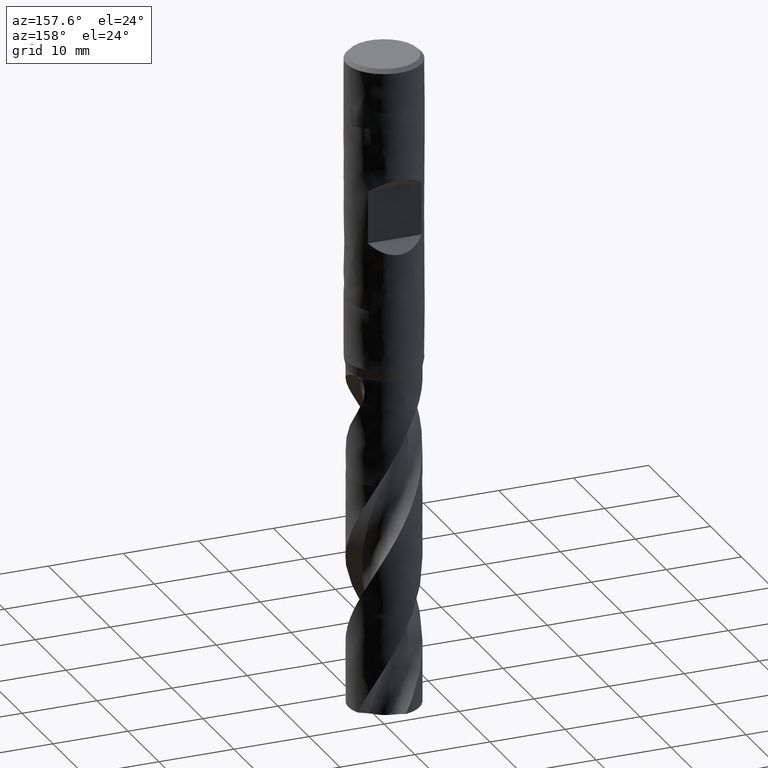
[diagram: clean part render]
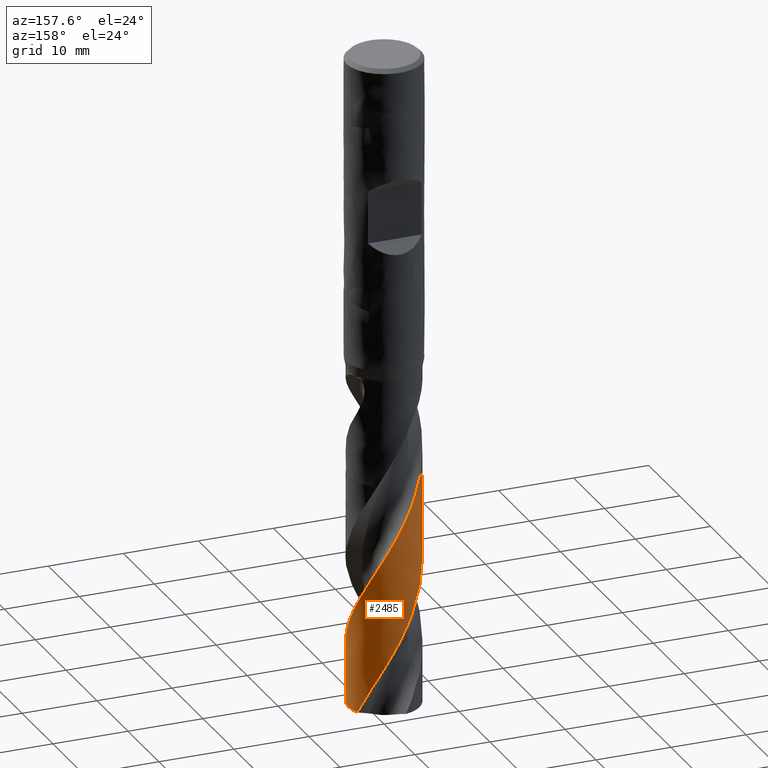
[diagram: same view with one face highlighted and labeled with its STEP entity id]
A machine part, auxiliary view. The second image highlights one B-rep face of the part: STEP entity #2485.
In plain terms, the highlighted face is a freeform B-spline surface patch.
Its self-contained STEP definition (entity closure, byte-faithful):
#1980 = VERTEX_POINT('', #1981);
#1981 = CARTESIAN_POINT('', (-4.75, 3.73517273739943E-15, -56.25));
#2083 = VERTEX_POINT('', #2084);
#2084 = CARTESIAN_POINT('', (-3.42835843437205, 3.28768283833311, -56.25));
#2151 = EDGE_CURVE('', #1980, #2083, #2152, .T.);
#2152 = CIRCLE('', #2153, 4.75);
#2153 = AXIS2_PLACEMENT_3D('', #2154, #2155, #2156);
#2154 = CARTESIAN_POINT('', (2.10903719436824E-31, 3.44431912260193E-15, -56.25));
#2155 = DIRECTION('', (3.74939945665464E-33, 6.12323399573677E-17, -1.));
#2156 = DIRECTION('', (-1., 6.12323399573677E-17, 0.));
#2168 = VERTEX_POINT('', #2169);
#2169 = CARTESIAN_POINT('', (-4.75, 4.24570542958693E-15, -64.5876315937453));
#2221 = EDGE_CURVE('', #2222, #2168, #2224, .T.);
#2222 = VERTEX_POINT('', #2223);
#2223 = CARTESIAN_POINT('', (4.34434243496843, 1.92072611471094, -87.2711413872355));
#2224 = B_SPLINE_CURVE_WITH_KNOTS('', 3, (#2225, #2226, #2227, #2228, #2229, #2230, #2231, #2232, #2233, #2234, #2235, #2236, #2237, #2238, #2239, #2240, #2241, #2242, #2243, #2244, #2245, #2246, #2247, #2248, #2249, #2250, #2251, #2252, #2253, #2254, #2255, #2256, #2257, #2258, #2259, #2260, #2261, #2262, #2263, #2264, #2265, #2266, #2267, #2268, #2269, #2270, #2271, #2272, #2273, #2274, #2275, #2276, #2277, #2278, #2279, #2280, #2281, #2282, #2283, #2284, #2285, #2286, #2287, #2288, #2289, #2290, #2291, #2292, #2293, #2294, #2295, #2296, #2297, #2298, #2299, #2300, #2301, #2302, #2303, #2304, #2305, #2306, #2307, #2308, #2309), .UNSPECIFIED., .F., .U., (4, 3, 3, 3, 3, 3, 3, 3, 3, 3, 3, 3, 3, 3, 3, 3, 3, 3, 3, 3, 3, 3, 3, 3, 3, 3, 3, 3, 4), (0., 0.998552159831574, 1.9967643399105, 2.9946425606502, 3.9921909999045, 4.98941205796551, 5.98630631202533, 6.98287259292542, 7.97910794089269, 8.97500755513941, 9.97056469055358, 10.9657705104362, 11.053329191126, 11.1117112191204, 12.1117415758042, 13.1113795363943, 14.1106412549104, 15.1095399413143, 16.1080862127289, 17.1062883632414, 18.1041525673784, 19.1016830280559, 20.0988820765574, 21.0957502295004, 22.0922862056059, 23.0884869031589, 24.0843473372233, 25.0798605337311, 26.1145709174074), .UNSPECIFIED.);
#2225 = CARTESIAN_POINT('', (4.34434243496843, 1.92072611471094, -87.2711413872355));
#2226 = CARTESIAN_POINT('', (4.27781410529156, 2.07120141857086, -86.9817959776542));
#2227 = CARTESIAN_POINT('', (4.20342842456414, 2.21828078697026, -86.6923649763104));
#2228 = CARTESIAN_POINT('', (4.12163068597098, 2.36107189396309, -86.4030391539372));
#2229 = CARTESIAN_POINT('', (4.03986079727494, 2.5038143844818, -86.1138118391086));
#2230 = CARTESIAN_POINT('', (3.95062988557853, 2.64236573586347, -85.8244993131762));
#2231 = CARTESIAN_POINT('', (3.85447368000594, 2.7758841204455, -85.5352917786127));
#2232 = CARTESIAN_POINT('', (3.75834964421, 2.90935783545488, -85.2461810005897));
#2233 = CARTESIAN_POINT('', (3.65524139865391, 3.03789018835303, -84.9569849532959));
#2234 = CARTESIAN_POINT('', (3.54576877339706, 3.16069989173321, -84.6678939193633));
#2235 = CARTESIAN_POINT('', (3.43633232694863, 3.28346900863143, -84.3788984250152));
#2236 = CARTESIAN_POINT('', (3.3204634352715, 3.400600324194, -84.0898176448567));
#2237 = CARTESIAN_POINT('', (3.19885933959265, 3.51138134150948, -83.8008418712261));
#2238 = CARTESIAN_POINT('', (3.07729515264644, 3.62212600207252, -83.5119609353295));
#2239 = CARTESIAN_POINT('', (2.94991928861926, 3.72659761825016, -83.2229947030538));
#2240 = CARTESIAN_POINT('', (2.81749881712219, 3.82416009281975, -82.9341334754723));
#2241 = CARTESIAN_POINT('', (2.68512174176038, 3.92169059473212, -82.6453669119616));
#2242 = CARTESIAN_POINT('', (2.54761605803888, 4.01238079957376, -82.3565150322913));
#2243 = CARTESIAN_POINT('', (2.40581031719949, 4.09567780930783, -82.067768158506));
#2244 = CARTESIAN_POINT('', (2.2640512297305, 4.17894741474764, -81.7791162809796));
#2245 = CARTESIAN_POINT('', (2.11790149269298, 4.25488355786413, -81.4903790696891));
#2246 = CARTESIAN_POINT('', (1.96824214883324, 4.32302241996921, -81.2017468664682));
#2247 = CARTESIAN_POINT('', (1.81863250282756, 4.39113865498575, -80.9132105102605));
#2248 = CARTESIAN_POINT('', (1.66541707039831, 4.45150763146678, -80.624588800556));
#2249 = CARTESIAN_POINT('', (1.5095198266473, 4.50375952876696, -80.3360721023846));
#2250 = CARTESIAN_POINT('', (1.35367512064429, 4.55599381705143, -80.0476526350379));
#2251 = CARTESIAN_POINT('', (1.19504788867904, 4.60015085259975, -79.7591477954206));
#2252 = CARTESIAN_POINT('', (1.0345950279684, 4.63595870647102, -79.4707479696627));
#2253 = CARTESIAN_POINT('', (0.874197345217096, 4.67175424641846, -79.1824473214064));
#2254 = CARTESIAN_POINT('', (0.711869869519744, 4.6992298668565, -78.8940612846018));
#2255 = CARTESIAN_POINT('', (0.548592064224543, 4.71821436001731, -78.6057802612678));
#2256 = CARTESIAN_POINT('', (0.385371876947343, 4.73719215386668, -78.3176009675054));
#2257 = CARTESIAN_POINT('', (0.221094853860025, 4.74769726844375, -78.0293362726109));
#2258 = CARTESIAN_POINT('', (0.0567524334764137, 4.74966095224644, -77.7411765870961));
#2259 = CARTESIAN_POINT('', (0.0422935092793621, 4.74983371808002, -77.7158241611079));
#2260 = CARTESIAN_POINT('', (0.0278336366858692, 4.74994046133322, -77.6904717401027));
#2261 = CARTESIAN_POINT('', (0.0133734885529995, 4.74998117362627, -77.6651194562028));
#2262 = CARTESIAN_POINT('', (0.00373180863677798, 4.7500083196067, -77.6482151614292));
#2263 = CARTESIAN_POINT('', (-0.00591002146786993, 4.75000610911033, -77.6313108796837));
#2264 = CARTESIAN_POINT('', (-0.0155518025620673, 4.74997454113568, -77.6144066502987));
#2265 = CARTESIAN_POINT('', (-0.18070663047611, 4.74943381081099, -77.3248527734975));
#2266 = CARTESIAN_POINT('', (-0.345906174537543, 4.7402675861475, -77.0352125227759));
#2267 = CARTESIAN_POINT('', (-0.510141133585553, 4.72252644501072, -76.7456784362146));
#2268 = CARTESIAN_POINT('', (-0.674311649433477, 4.7047922652171, -76.456257958249));
#2269 = CARTESIAN_POINT('', (-0.837628647057527, 4.67847797409876, -76.166751123886));
#2270 = CARTESIAN_POINT('', (-0.999094126029116, 4.64373889525828, -75.8773504190245));
#2271 = CARTESIAN_POINT('', (-1.16049883289212, 4.60901289145455, -75.5880586383193));
#2272 = CARTESIAN_POINT('', (-1.32016182865679, 4.5658451081439, -75.2986805141907));
#2273 = CARTESIAN_POINT('', (-1.47710719865446, 4.51449380591926, -75.0094084904528));
#2274 = CARTESIAN_POINT('', (-1.63399555034741, 4.46316115963966, -74.7202415593366));
#2275 = CARTESIAN_POINT('', (-1.78827359569753, 4.40361646369362, -74.4309882939955));
#2276 = CARTESIAN_POINT('', (-1.93899804623484, 4.33621800382517, -74.1418411045923));
#2277 = CARTESIAN_POINT('', (-2.08966932065291, 4.26884332237174, -73.8527959273402));
#2278 = CARTESIAN_POINT('', (-2.23689064439197, 4.19357518466096, -73.563664421956));
#2279 = CARTESIAN_POINT('', (-2.37976153755922, 4.11086791618921, -73.2746389719417));
#2280 = CARTESIAN_POINT('', (-2.52258319428945, 4.02818915045252, -72.9857131264239));
#2281 = CARTESIAN_POINT('', (-2.66115325473738, 3.93802089250388, -72.6967009563528));
#2282 = CARTESIAN_POINT('', (-2.79462376193925, 3.84090849008468, -72.4077948242844));
#2283 = CARTESIAN_POINT('', (-2.92804908202732, 3.74382896555941, -72.118986502845));
#2284 = CARTESIAN_POINT('', (-3.05646780207628, 3.63974486795515, -71.8300918584499));
#2285 = CARTESIAN_POINT('', (-3.17909362916044, 3.52928657054532, -71.5413032372743));
#2286 = CARTESIAN_POINT('', (-3.30167844308113, 3.41886521677385, -71.2526112037034));
#2287 = CARTESIAN_POINT('', (-3.4185564385743, 3.30199987207384, -70.9638328472814));
#2288 = CARTESIAN_POINT('', (-3.52901145533032, 3.17939902310915, -70.6751605013137));
#2289 = CARTESIAN_POINT('', (-3.63942977532478, 3.05683890614789, -70.3865840617209));
#2290 = CARTESIAN_POINT('', (-3.7435033982923, 2.92846493063469, -70.0979212983453));
#2291 = CARTESIAN_POINT('', (-3.84059400033652, 2.79505594301422, -69.8093645341466));
#2292 = CARTESIAN_POINT('', (-3.93765238529327, 2.66169122382895, -69.5209035202917));
#2293 = CARTESIAN_POINT('', (-4.02779741654032, 2.52320546006123, -69.2323561811234));
#2294 = CARTESIAN_POINT('', (-4.11047546143076, 2.38043934620809, -68.9439148308347));
#2295 = CARTESIAN_POINT('', (-4.19312595630729, 2.23772080494123, -68.6555695950976));
#2296 = CARTESIAN_POINT('', (-4.26836979655543, 2.09062916341999, -68.3671380323459));
#2297 = CARTESIAN_POINT('', (-4.33574397148301, 1.94005778618805, -68.0788124486592));
#2298 = CARTESIAN_POINT('', (-4.40309547877351, 1.78953706779293, -67.790583870386));
#2299 = CARTESIAN_POINT('', (-4.46262770387666, 1.63543817078888, -67.5022689636545));
#2300 = CARTESIAN_POINT('', (-4.51397319930699, 1.47869738484203, -67.2140600261566));
#2301 = CARTESIAN_POINT('', (-4.56530115710918, 1.32201013546344, -66.9259495296443));
#2302 = CARTESIAN_POINT('', (-4.60848232063833, 1.16257793905686, -66.637752703925));
#2303 = CARTESIAN_POINT('', (-4.64324870268004, 1.00136980434884, -66.3496618370892));
#2304 = CARTESIAN_POINT('', (-4.67800296234682, 0.840217879845452, -66.0616714220488));
#2305 = CARTESIAN_POINT('', (-4.70437154790352, 0.677183461256449, -65.7735946782134));
#2306 = CARTESIAN_POINT('', (-4.72218874172564, 0.513257720374041, -65.4856238818265));
#2307 = CARTESIAN_POINT('', (-4.74070746706288, 0.342877591976098, -65.1863145665283));
#2308 = CARTESIAN_POINT('', (-4.75, 0.171420550024657, -64.8869197368358));
#2309 = CARTESIAN_POINT('', (-4.75, 4.24428072016965E-15, -64.5876315937453));
#2472 = EDGE_CURVE('', #1980, #2168, #2473, .T.);
#2473 = LINE('', #2474, #2475);
#2474 = CARTESIAN_POINT('', (-4.75, 3.73517273739943E-15, -56.25));
#2475 = VECTOR('', #2476, 8.33763159374533);
#2476 = DIRECTION('', (0., 5.10532692187503E-16, -8.33763159374533));
#2485 = ADVANCED_FACE('', (#2486), #2633, .T.);
#2486 = FACE_OUTER_BOUND('', #2487, .T.);
#2487 = EDGE_LOOP('', (#2488, #2489, #2504, #2612, #2624, #2631, #2632));
#2488 = ORIENTED_EDGE('', *, *, #2151, .T.);
#2489 = ORIENTED_EDGE('', *, *, #2490, .T.);
#2490 = EDGE_CURVE('', #2083, #2491, #2493, .T.);
#2491 = VERTEX_POINT('', #2492);
#2492 = CARTESIAN_POINT('', (-2.36121915067023, 4.12154632662405, -58.6089177658275));
#2493 = B_SPLINE_CURVE_WITH_KNOTS('', 3, (#2494, #2495, #2496, #2497, #2498, #2499, #2500, #2501, #2502, #2503), .UNSPECIFIED., .F., .U., (4, 3, 3, 4), (5.7380290514873, 6.51759069983041, 7.51475666058049, 8.46006475670372), .UNSPECIFIED.);
#2494 = CARTESIAN_POINT('', (-3.42835843437205, 3.28768283833311, -56.25));
#2495 = CARTESIAN_POINT('', (-3.33854385061548, 3.38134046922173, -56.475134691057));
#2496 = CARTESIAN_POINT('', (-3.24487105773341, 3.47133148858187, -56.7003708628242));
#2497 = CARTESIAN_POINT('', (-3.14771375444896, 3.55730208445289, -56.9255231567509));
#2498 = CARTESIAN_POINT('', (-3.02343627635671, 3.66727023387401, -57.213523732415));
#2499 = CARTESIAN_POINT('', (-2.89335679420673, 3.77074401417099, -57.5016313146143));
#2500 = CARTESIAN_POINT('', (-2.75829101408919, 3.86708296802575, -57.7896560670963));
#2501 = CARTESIAN_POINT('', (-2.63024936357168, 3.95841179054437, -58.0627020204504));
#2502 = CARTESIAN_POINT('', (-2.49764705870801, 4.04338726601523, -58.3358458011624));
#2503 = CARTESIAN_POINT('', (-2.36121915067019, 4.12154632662407, -58.6089177658275));
#2504 = ORIENTED_EDGE('', *, *, #2505, .T.);
#2505 = EDGE_CURVE('', #2491, #2506, #2508, .T.);
#2506 = VERTEX_POINT('', #2507);
#2507 = CARTESIAN_POINT('', (1.93302093785422, -4.33888580787938, -85.5658816906307));
#2508 = B_SPLINE_CURVE_WITH_KNOTS('', 3, (#2509, #2510, #2511, #2512, #2513, #2514, #2515, #2516, #2517, #2518, #2519, #2520, #2521, #2522, #2523, #2524, #2525, #2526, #2527, #2528, #2529, #2530, #2531, #2532, #2533, #2534, #2535, #2536, #2537, #2538, #2539, #2540, #2541, #2542, #2543, #2544, #2545, #2546, #2547, #2548, #2549, #2550, #2551, #2552, #2553, #2554, #2555, #2556, #2557, #2558, #2559, #2560, #2561, #2562, #2563, #2564, #2565, #2566, #2567, #2568, #2569, #2570, #2571, #2572, #2573, #2574, #2575, #2576, #2577, #2578, #2579, #2580, #2581, #2582, #2583, #2584, #2585, #2586, #2587, #2588, #2589, #2590, #2591, #2592, #2593, #2594, #2595, #2596, #2597, #2598, #2599, #2600, #2601, #2602, #2603, #2604, #2605, #2606, #2607, #2608, #2609, #2610, #2611), .UNSPECIFIED., .F., .U., (4, 3, 3, 3, 3, 3, 3, 3, 3, 3, 3, 3, 3, 3, 3, 3, 3, 3, 3, 3, 3, 3, 3, 3, 3, 3, 3, 3, 3, 3, 3, 3, 3, 3, 4), (0., 0.996501272400312, 1.99266297569571, 2.98848176012482, 3.98395162622009, 4.64792985290916, 4.94327926925144, 5.00166688075619, 6.00172768182981, 7.00138485461415, 8.0006564769354, 8.99955749573746, 9.99810011649442, 10.9962941060413, 11.9941470231089, 12.9916643896167, 13.988849811201, 14.9857050529541, 15.9822300743309, 16.9784230236891, 17.9742801930746, 18.9697959311924, 19.9649625101773, 20.0233506156575, 21.0233719157207, 22.0229981733275, 23.0222469785819, 24.0211328927331, 25.019667824768, 26.0178613231413, 27.0157207982676, 28.0132516895119, 29.0104575790191, 30.007340276891, 31.0439009169316), .UNSPECIFIED.);
#2509 = CARTESIAN_POINT('', (-2.36121915067023, 4.12154632662405, -58.6089177658275));
#2510 = CARTESIAN_POINT('', (-2.21740298691564, 4.20393809251047, -58.8967779474567));
#2511 = CARTESIAN_POINT('', (-2.06924612156452, 4.27880495969429, -59.1847535707337));
#2512 = CARTESIAN_POINT('', (-1.9176640511019, 4.3456949486948, -59.4726486583896));
#2513 = CARTESIAN_POINT('', (-1.76613363394812, 4.4125621441733, -59.7604456425307));
#2514 = CARTESIAN_POINT('', (-1.61107850830457, 4.47150292919666, -60.0483583830343));
#2515 = CARTESIAN_POINT('', (-1.45345305505412, 4.52216477107525, -60.336190604128));
#2516 = CARTESIAN_POINT('', (-1.29588186281526, 4.57280917311317, -60.6239237418113));
#2517 = CARTESIAN_POINT('', (-1.13563638925911, 4.61521433320697, -60.9117721719085));
#2518 = CARTESIAN_POINT('', (-0.973700905166777, 4.64912965481475, -61.1995403851539));
#2519 = CARTESIAN_POINT('', (-0.811822160573818, 4.68303309305811, -61.4872077692052));
#2520 = CARTESIAN_POINT('', (-0.648146076600497, 4.70847540740268, -61.7749901985301));
#2521 = CARTESIAN_POINT('', (-0.483675462432643, 4.72531036515504, -62.0626926423768));
#2522 = CARTESIAN_POINT('', (-0.373973591530222, 4.73653927903331, -62.2545901221355));
#2523 = CARTESIAN_POINT('', (-0.263877163543146, 4.74394597465083, -62.4465240584102));
#2524 = CARTESIAN_POINT('', (-0.153687128881858, 4.74751306121596, -62.6384372259598));
#2525 = CARTESIAN_POINT('', (-0.104672626424102, 4.74909976525641, -62.7238036427274));
#2526 = CARTESIAN_POINT('', (-0.055634845131135, 4.74992728169528, -62.8091741808203));
#2527 = CARTESIAN_POINT('', (-0.00660003358134493, 4.74999541468797, -62.8945436531556));
#2528 = CARTESIAN_POINT('', (0.0030936558880117, 4.75000888389593, -62.9114203399181));
#2529 = CARTESIAN_POINT('', (0.0127872986379305, 4.74999267882782, -62.9282971032841));
#2530 = CARTESIAN_POINT('', (0.0224806891499762, 4.74994680166161, -62.9451739047788));
#2531 = CARTESIAN_POINT('', (0.188508715143246, 4.74916101929427, -63.2342391223378));
#2532 = CARTESIAN_POINT('', (0.354520466553585, 4.73965829333934, -63.5234206256285));
#2533 = CARTESIAN_POINT('', (0.519493261958489, 4.72150683053406, -63.812521168772));
#2534 = CARTESIAN_POINT('', (0.684399473724562, 4.70336269372723, -64.1015050298523));
#2535 = CARTESIAN_POINT('', (0.848378540408231, 4.67656462903865, -64.3906048801853));
#2536 = CARTESIAN_POINT('', (1.01042288812935, 4.64128706148891, -64.6796240195927));
#2537 = CARTESIAN_POINT('', (1.17240473815126, 4.60602309988616, -64.9685316893221));
#2538 = CARTESIAN_POINT('', (1.33256219110818, 4.56226252125249, -65.2575550580192));
#2539 = CARTESIAN_POINT('', (1.4899136685605, 4.51028350109387, -65.5464979630365));
#2540 = CARTESIAN_POINT('', (1.6472067884952, 4.45832375858446, -65.8353337067425));
#2541 = CARTESIAN_POINT('', (1.80180153683813, 4.39811685040189, -66.1242848624545));
#2542 = CARTESIAN_POINT('', (1.95275286971551, 4.33004113488762, -66.4131558013224));
#2543 = CARTESIAN_POINT('', (2.10365004240926, 4.26198984441938, -66.7019230955069));
#2544 = CARTESIAN_POINT('', (2.25100750826638, 4.18602984059809, -66.990805517354));
#2545 = CARTESIAN_POINT('', (2.39392684200732, 4.10263504044866, -67.2796079695651));
#2546 = CARTESIAN_POINT('', (2.53679627688643, 4.01926935676305, -67.5683095892765));
#2547 = CARTESIAN_POINT('', (2.67532627667399, 3.92841832602526, -67.8571260537625));
#2548 = CARTESIAN_POINT('', (2.80867455673345, 3.83064579860345, -68.1458627970941));
#2549 = CARTESIAN_POINT('', (2.94197727307587, 3.73290667903491, -68.434500882091));
#2550 = CARTESIAN_POINT('', (3.07019090912349, 3.62818550687857, -68.7232535294717));
#2551 = CARTESIAN_POINT('', (3.19253818223063, 3.51712950500825, -69.0119267062665));
#2552 = CARTESIAN_POINT('', (3.31484431330643, 3.40611084822454, -69.3005028101916));
#2553 = CARTESIAN_POINT('', (3.43136969635481, 3.28868753474961, -69.5891931936523));
#2554 = CARTESIAN_POINT('', (3.54141015989946, 3.16558273930108, -69.8778043599814));
#2555 = CARTESIAN_POINT('', (3.65141400516108, 3.04251890956731, -70.1663194848633));
#2556 = CARTESIAN_POINT('', (3.75501064146068, 2.91369531987208, -70.454948605088));
#2557 = CARTESIAN_POINT('', (3.8515762828602, 2.77990290069794, -70.7434987652324));
#2558 = CARTESIAN_POINT('', (3.94810995023916, 2.64615478176869, -71.0319533830221));
#2559 = CARTESIAN_POINT('', (4.03768164244095, 2.5073520024307, -71.3205217106874));
#2560 = CARTESIAN_POINT('', (4.11975432763292, 2.36434436577032, -71.6090113378513));
#2561 = CARTESIAN_POINT('', (4.20179982525356, 2.22138410212222, -71.8974053993309));
#2562 = CARTESIAN_POINT('', (4.27640595589779, 2.07412656818765, -72.1859128853542));
#2563 = CARTESIAN_POINT('', (4.34312784106535, 1.92347096577075, -72.4743419318439));
#2564 = CARTESIAN_POINT('', (4.40982749250008, 1.77286556631809, -72.7626748651266));
#2565 = CARTESIAN_POINT('', (4.46869257611592, 1.618764135747, -73.051120938006));
#2566 = CARTESIAN_POINT('', (4.51937473994611, 1.46210531766256, -73.3394888336655));
#2567 = CARTESIAN_POINT('', (4.57003982068452, 1.30549930349898, -73.6277595311224));
#2568 = CARTESIAN_POINT('', (4.61256122791751, 1.14623346942998, -73.9161430831742));
#2569 = CARTESIAN_POINT('', (4.64669044012519, 0.985275572441322, -74.2044487219706));
#2570 = CARTESIAN_POINT('', (4.68080795107636, 0.824372860132252, -74.4926555147047));
#2571 = CARTESIAN_POINT('', (4.70656173099957, 0.661672297348003, -74.7809748765164));
#2572 = CARTESIAN_POINT('', (4.72380529306032, 0.498160168275495, -75.0692165910091));
#2573 = CARTESIAN_POINT('', (4.74104280725368, 0.334705388123769, -75.3573572099356));
#2574 = CARTESIAN_POINT('', (4.74978755525193, 0.170331035285869, -75.645610111414));
#2575 = CARTESIAN_POINT('', (4.74999617102033, 0.00603119326790176, -75.9337856338265));
#2576 = CARTESIAN_POINT('', (4.75000841086012, -0.00360855620590868, -75.9506933788762));
#2577 = CARTESIAN_POINT('', (4.74999130576836, -0.0132482536403028, -75.967601200302));
#2578 = CARTESIAN_POINT('', (4.74994485790633, -0.0228877008283846, -75.9845090583242));
#2579 = CARTESIAN_POINT('', (4.74914933883637, -0.18798386946819, -76.2740923222722));
#2580 = CARTESIAN_POINT('', (4.73973460406978, -0.353062100198516, -76.5637896332615));
#2581 = CARTESIAN_POINT('', (4.72176763117008, -0.517117430797376, -76.853408142504));
#2582 = CARTESIAN_POINT('', (4.70380775583632, -0.681107953955854, -77.142912242576));
#2583 = CARTESIAN_POINT('', (4.67729055078733, -0.844184904672113, -77.4325301116669));
#2584 = CARTESIAN_POINT('', (4.64238680212281, -1.00535803546595, -77.7220694406114));
#2585 = CARTESIAN_POINT('', (4.60749623288604, -1.16647030833724, -78.0114994413944));
#2586 = CARTESIAN_POINT('', (4.56420243439192, -1.32578666006023, -78.3010429371822));
#2587 = CARTESIAN_POINT('', (4.51277761298926, -1.48234213854487, -78.5905081536502));
#2588 = CARTESIAN_POINT('', (4.46137146722582, -1.63884076172982, -78.8798682467983));
#2589 = CARTESIAN_POINT('', (4.40180631675857, -1.79268379402013, -79.1693415639982));
#2590 = CARTESIAN_POINT('', (4.33445233587437, -1.9429418282682, -79.4587368624927));
#2591 = CARTESIAN_POINT('', (4.26712202139934, -2.09314706581336, -79.7480304751261));
#2592 = CARTESIAN_POINT('', (4.19196400758968, -2.23986883045047, -80.0374370436065));
#2593 = CARTESIAN_POINT('', (4.10944196095894, -2.3822230729951, -80.3267658537744));
#2594 = CARTESIAN_POINT('', (4.02694813147278, -2.52452863969602, -80.6159957324059));
#2595 = CARTESIAN_POINT('', (3.93704102923853, -2.66256336671661, -80.9053383013715));
#2596 = CARTESIAN_POINT('', (3.84027236564768, -2.79549783717369, -81.194603372235));
#2597 = CARTESIAN_POINT('', (3.74353608353723, -2.9283878240677, -81.4837716469779));
#2598 = CARTESIAN_POINT('', (3.63987924621715, -3.05626837452897, -81.7730523486057));
#2599 = CARTESIAN_POINT('', (3.52993525475838, -3.17837334138295, -82.0622558130088));
#2600 = CARTESIAN_POINT('', (3.42002746661725, -3.30043810044713, -82.3513640459695));
#2601 = CARTESIAN_POINT('', (3.30376448724507, -3.41681129010049, -82.6405844441374));
#2602 = CARTESIAN_POINT('', (3.18185421431107, -3.52679794698687, -82.9297278658597));
#2603 = CARTESIAN_POINT('', (3.05998366049836, -3.63674876953986, -83.218777082866));
#2604 = CARTESIAN_POINT('', (2.93238953024371, -3.74038940656921, -83.5079382045043));
#2605 = CARTESIAN_POINT('', (2.79984627300188, -3.83710318437718, -83.7970226130436));
#2606 = CARTESIAN_POINT('', (2.66734597265843, -3.93378561752066, -84.0860133301358));
#2607 = CARTESIAN_POINT('', (2.52981288599034, -4.02360910638903, -84.3751156906446));
#2608 = CARTESIAN_POINT('', (2.38807940268304, -4.10604149595215, -84.6641416027972));
#2609 = CARTESIAN_POINT('', (2.24070464085214, -4.19175486089272, -84.9646713292422));
#2610 = CARTESIAN_POINT('', (2.0886918396207, -4.26953272373442, -85.2653139979323));
#2611 = CARTESIAN_POINT('', (1.93302093785422, -4.33888580787938, -85.5658816906307));
#2612 = ORIENTED_EDGE('', *, *, #2613, .T.);
#2613 = EDGE_CURVE('', #2506, #2614, #2616, .T.);
#2614 = VERTEX_POINT('', #2615);
#2615 = CARTESIAN_POINT('', (1.01637231221319, -4.63998785806239, -87.2711413872355));
#2616 = B_SPLINE_CURVE_WITH_KNOTS('', 3, (#2617, #2618, #2619, #2620, #2621, #2622, #2623), .UNSPECIFIED., .F., .U., (4, 3, 4), (0., 0.996226007879451, 1.95990563712266), .UNSPECIFIED.);
#2617 = CARTESIAN_POINT('', (1.93302093785432, -4.33888580787934, -85.5658816906306));
#2618 = CARTESIAN_POINT('', (1.78340749989499, -4.40554022584871, -85.8547536977548));
#2619 = CARTESIAN_POINT('', (1.63031650283691, -4.46445729212054, -86.1437337632478));
#2620 = CARTESIAN_POINT('', (1.47466720553754, -4.51529142281094, -86.4326337739089));
#2621 = CARTESIAN_POINT('', (1.32410291999684, -4.56446481903746, -86.7120955154818));
#2622 = CARTESIAN_POINT('', (1.17105206442111, -4.60610582599393, -86.9916549400872));
#2623 = CARTESIAN_POINT('', (1.0163723122132, -4.63998785806239, -87.2711413872355));
#2624 = ORIENTED_EDGE('', *, *, #2625, .F.);
#2625 = EDGE_CURVE('', #2222, #2614, #2626, .T.);
#2626 = CIRCLE('', #2627, 4.75);
#2627 = AXIS2_PLACEMENT_3D('', #2628, #2629, #2630);
#2628 = CARTESIAN_POINT('', (3.27214370098931E-31, 5.34381619789071E-15, -87.2711413872355));
#2629 = DIRECTION('', (3.74939945665464E-33, 6.12323399573677E-17, -1.));
#2630 = DIRECTION('', (-1., 6.12323399573677E-17, 0.));
#2631 = ORIENTED_EDGE('', *, *, #2221, .T.);
#2632 = ORIENTED_EDGE('', *, *, #2472, .F.);
#2633 = (
   BOUNDED_SURFACE ()
   B_SPLINE_SURFACE (2, 1, ((#2634, #2635), (#2636, #2637), (#2638, #2639), (#2640, #2641), (#2642, #2643), (#2644, #2645), (#2646, #2647)), .UNSPECIFIED., .F., .F., .U.)
   B_SPLINE_SURFACE_WITH_KNOTS ((3, 2, 2, 3), (2, 2), (0., 7.46128255227576, 14.9225651045515, 21.2907252804019), (0.31477006241371, 1.), .UNSPECIFIED.)
   GEOMETRIC_REPRESENTATION_ITEM ()
   RATIONAL_B_SPLINE_SURFACE (((1., 1.), (0.707106781186548, 0.707106781186548), (1., 1.), (0.707106781186548, 0.707106781186548), (1., 1.), (0.750017383907333, 0.750017383907333), (0.926752112802671, 0.926752112802671)))
   REPRESENTATION_ITEM ('')
   SURFACE ()
);
#2634 = CARTESIAN_POINT('', (-4.75, 3.73517273739943E-15, -56.25));
#2635 = CARTESIAN_POINT('', (-4.75, 5.6346698126882E-15, -87.2711413872355));
#2636 = CARTESIAN_POINT('', (-4.75, 4.75, -56.25));
#2637 = CARTESIAN_POINT('', (-4.75, 4.75000000000001, -87.2711413872355));
#2638 = CARTESIAN_POINT('', (2.46519032881566E-31, 4.75, -56.25));
#2639 = CARTESIAN_POINT('', (3.45126646034193E-31, 4.75000000000001, -87.2711413872355));
#2640 = CARTESIAN_POINT('', (4.75, 4.75, -56.25));
#2641 = CARTESIAN_POINT('', (4.75, 4.75000000000001, -87.2711413872355));
#2642 = CARTESIAN_POINT('', (4.75, 3.73517273739943E-15, -56.25));
#2643 = CARTESIAN_POINT('', (4.75, 5.6346698126882E-15, -87.2711413872355));
#2644 = CARTESIAN_POINT('', (4.75, -3.82215041493517, -56.25));
#2645 = CARTESIAN_POINT('', (4.75, -3.82215041493517, -87.2711413872355));
#2646 = CARTESIAN_POINT('', (1.01637231221319, -4.63998785806239, -56.25));
#2647 = CARTESIAN_POINT('', (1.01637231221319, -4.63998785806238, -87.2711413872355));